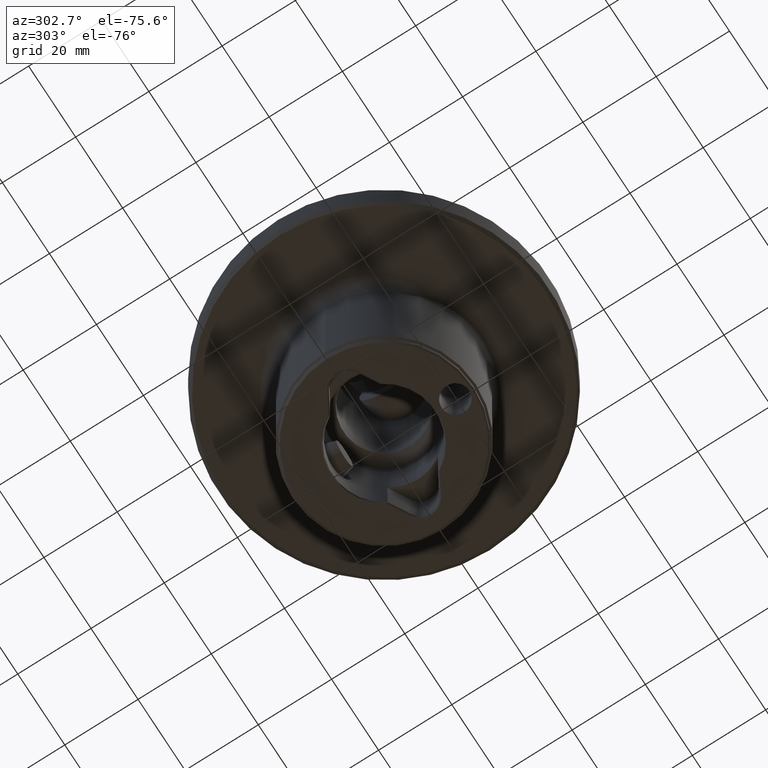
[diagram: clean part render]
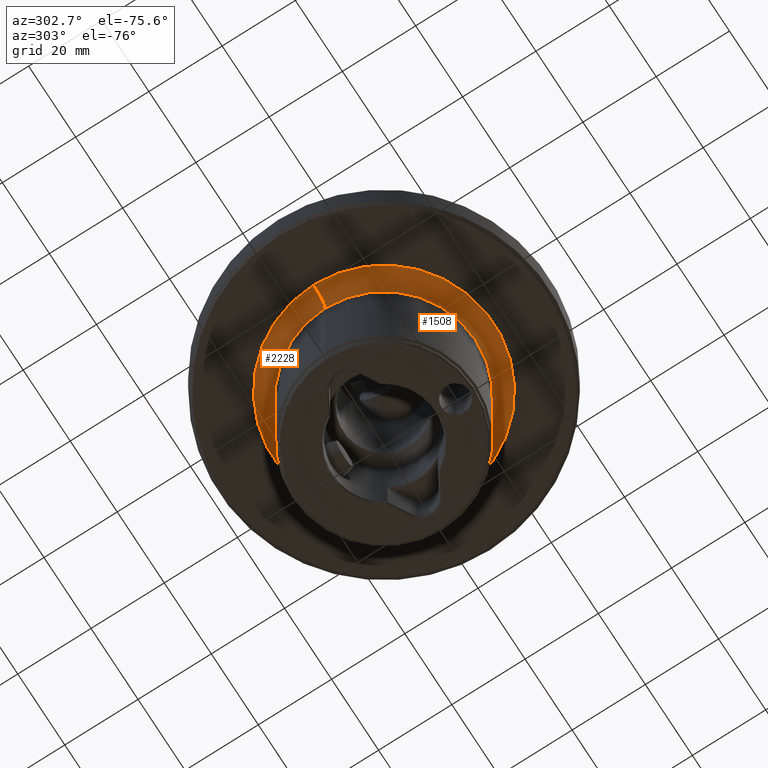
[diagram: same view with one multi-face feature highlighted, each face labeled with its STEP entity id]
A machine part, auxiliary view. The highlighted faces form ONE feature: a constant-radius fillet chain: 2 tangent blend faces with common blend radius 5 mm. The faces share edges in the B-rep.
Their STEP definitions:
[1] entity #1508 (Torus):
#940=VERTEX_POINT('NONE',#2510);
#970=VERTEX_POINT('NONE',#2543);
#1132=EDGE_CURVE('NONE',#970,#1504,#2728,.T.);
#1206=EDGE_CURVE('NONE',#1588,#940,#2807,.T.);
#1504=VERTEX_POINT('NONE',#3138);
#1508=ADVANCED_FACE('NONE',(#3142),#3143,.F.);
#1588=VERTEX_POINT('NONE',#3233);
#2096=EDGE_CURVE('NONE',#970,#1588,#3807,.T.);
#2184=EDGE_CURVE('NONE',#940,#1504,#3902,.T.);
#2510=CARTESIAN_POINT('',(25.0,0.0,-16.9));
#2543=CARTESIAN_POINT('',(-30.0,3.67381906146713E-015,-11.9));
#2728=CIRCLE('',#4707,5.0);
#2807=CIRCLE('',#4861,5.0);
#3138=CARTESIAN_POINT('',(-25.0,3.08170915001849E-014,-16.9));
#3142=FACE_OUTER_BOUND('',#5417,.T.);
#3143=TOROIDAL_SURFACE('',#5418,30.0,5.0);
#3233=CARTESIAN_POINT('',(30.0,0.0,-11.9));
#3807=CIRCLE('',#6689,30.0);
#3902=CIRCLE('',#6914,25.0);
#4707=AXIS2_PLACEMENT_3D('',#7668,#7669,#7670);
#4861=AXIS2_PLACEMENT_3D('',#7749,#7750,#7751);
#5417=EDGE_LOOP('',(#8158,#8159,#8160,#8161));
#5418=AXIS2_PLACEMENT_3D('',#8162,#8163,#8164);
#6689=AXIS2_PLACEMENT_3D('',#9010,#9011,#9012);
#6914=AXIS2_PLACEMENT_3D('',#9103,#9104,#9105);
#7668=CARTESIAN_POINT('',(-30.0,3.67381906146713E-015,-16.9));
#7669=DIRECTION('',(1.22460635382238E-016,1.0,0.0));
#7670=DIRECTION('',(1.0,-1.22460635382238E-016,-0.0));
#7749=CARTESIAN_POINT('',(30.0,0.0,-16.9));
#7750=DIRECTION('',(0.0,-1.0,0.0));
#7751=DIRECTION('',(-1.0,0.0,0.0));
#8158=ORIENTED_EDGE('',*,*,#2096,.F.);
#8159=ORIENTED_EDGE('',*,*,#1132,.T.);
#8160=ORIENTED_EDGE('',*,*,#2184,.F.);
#8161=ORIENTED_EDGE('',*,*,#1206,.F.);
#8162=CARTESIAN_POINT('',(0.0,0.0,-16.9));
#8163=DIRECTION('',(0.0,0.0,1.0));
#8164=DIRECTION('',(1.0,0.0,0.0));
#9010=CARTESIAN_POINT('',(0.0,0.0,-11.9));
#9011=DIRECTION('',(0.0,0.0,1.0));
#9012=DIRECTION('',(1.0,0.0,0.0));
#9103=CARTESIAN_POINT('',(0.0,0.0,-16.9));
#9104=DIRECTION('',(0.0,0.0,-1.0));
#9105=DIRECTION('',(1.0,0.0,0.0));
[2] entity #2228 (Torus):
#932=EDGE_CURVE('NONE',#1504,#940,#2500,.T.);
#940=VERTEX_POINT('NONE',#2510);
#970=VERTEX_POINT('NONE',#2543);
#1132=EDGE_CURVE('NONE',#970,#1504,#2728,.T.);
#1206=EDGE_CURVE('NONE',#1588,#940,#2807,.T.);
#1504=VERTEX_POINT('NONE',#3138);
#1588=VERTEX_POINT('NONE',#3233);
#1598=EDGE_CURVE('NONE',#1588,#970,#3243,.T.);
#2228=ADVANCED_FACE('NONE',(#3951),#3952,.F.);
#2500=CIRCLE('',#4350,25.0);
#2510=CARTESIAN_POINT('',(25.0,0.0,-16.9));
#2543=CARTESIAN_POINT('',(-30.0,3.67381906146713E-015,-11.9));
#2728=CIRCLE('',#4707,5.0);
#2807=CIRCLE('',#4861,5.0);
#3138=CARTESIAN_POINT('',(-25.0,3.08170915001849E-014,-16.9));
#3233=CARTESIAN_POINT('',(30.0,0.0,-11.9));
#3243=CIRCLE('',#5586,30.0);
#3951=FACE_OUTER_BOUND('',#6997,.T.);
#3952=TOROIDAL_SURFACE('',#6998,30.0,5.0);
#4350=AXIS2_PLACEMENT_3D('',#7351,#7352,#7353);
#4707=AXIS2_PLACEMENT_3D('',#7668,#7669,#7670);
#4861=AXIS2_PLACEMENT_3D('',#7749,#7750,#7751);
#5586=AXIS2_PLACEMENT_3D('',#8291,#8292,#8293);
#6997=EDGE_LOOP('',(#9168,#9169,#9170,#9171));
#6998=AXIS2_PLACEMENT_3D('',#9172,#9173,#9174);
#7351=CARTESIAN_POINT('',(0.0,0.0,-16.9));
#7352=DIRECTION('',(0.0,0.0,-1.0));
#7353=DIRECTION('',(1.0,0.0,0.0));
#7668=CARTESIAN_POINT('',(-30.0,3.67381906146713E-015,-16.9));
#7669=DIRECTION('',(1.22460635382238E-016,1.0,0.0));
#7670=DIRECTION('',(1.0,-1.22460635382238E-016,-0.0));
#7749=CARTESIAN_POINT('',(30.0,0.0,-16.9));
#7750=DIRECTION('',(0.0,-1.0,0.0));
#7751=DIRECTION('',(-1.0,0.0,0.0));
#8291=CARTESIAN_POINT('',(0.0,0.0,-11.9));
#8292=DIRECTION('',(0.0,0.0,1.0));
#8293=DIRECTION('',(1.0,0.0,0.0));
#9168=ORIENTED_EDGE('',*,*,#1132,.F.);
#9169=ORIENTED_EDGE('',*,*,#1598,.F.);
#9170=ORIENTED_EDGE('',*,*,#1206,.T.);
#9171=ORIENTED_EDGE('',*,*,#932,.F.);
#9172=CARTESIAN_POINT('',(0.0,0.0,-16.9));
#9173=DIRECTION('',(0.0,0.0,1.0));
#9174=DIRECTION('',(1.0,0.0,0.0));